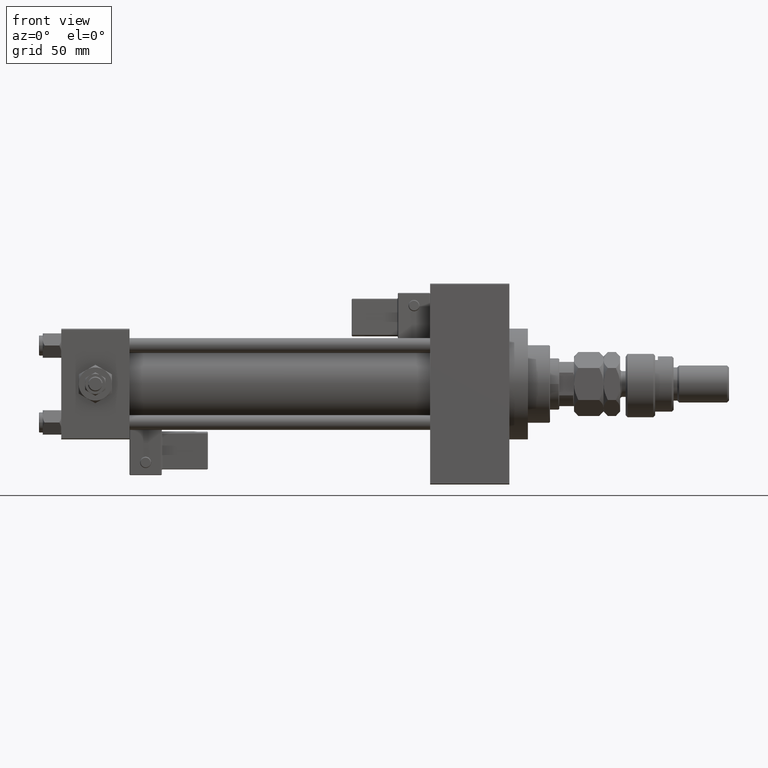
[diagram: clean part render]
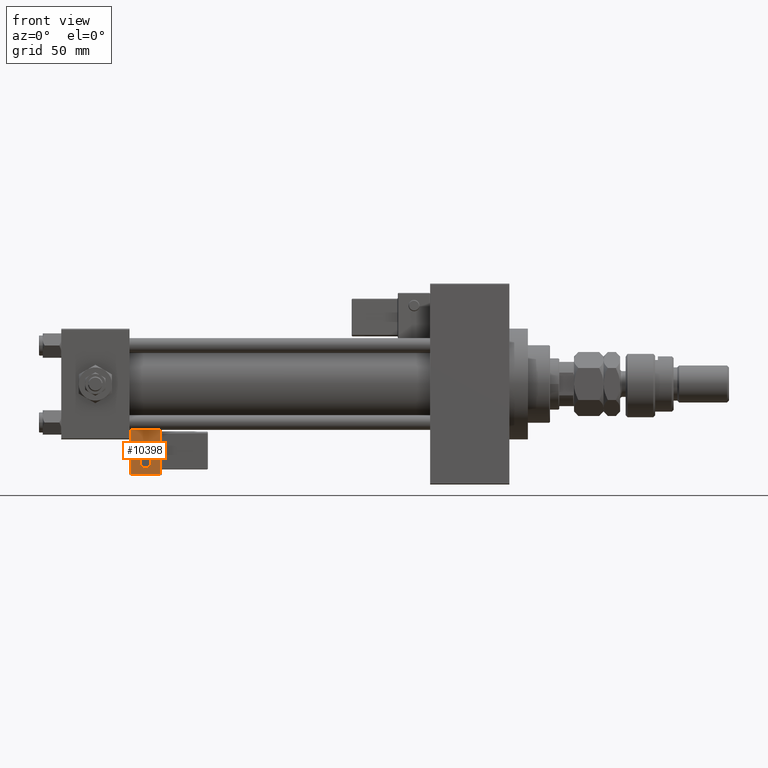
[diagram: same view with one face highlighted and labeled with its STEP entity id]
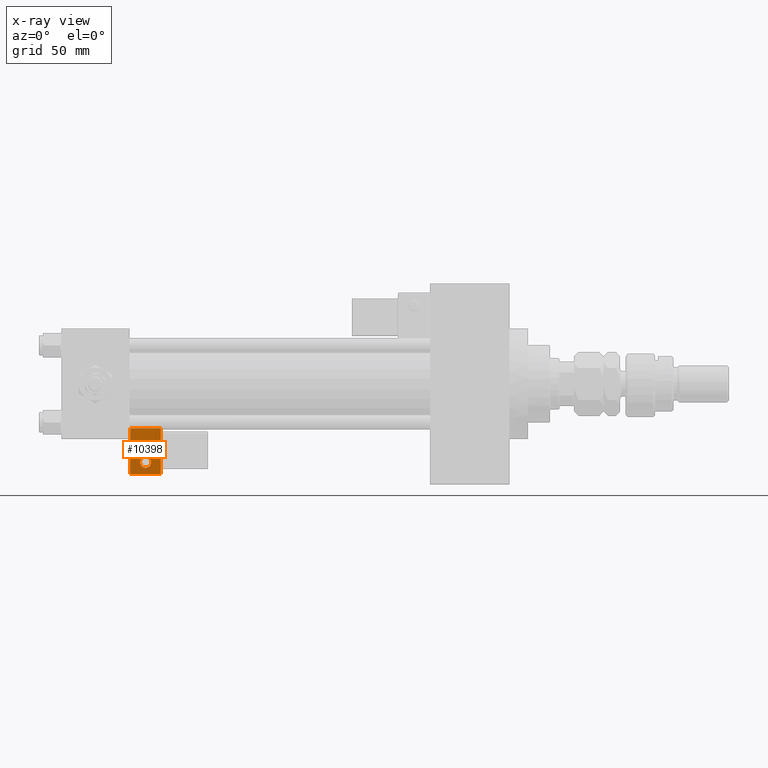
[diagram: x-ray of the same camera — body ghosted, the highlighted face saturated]
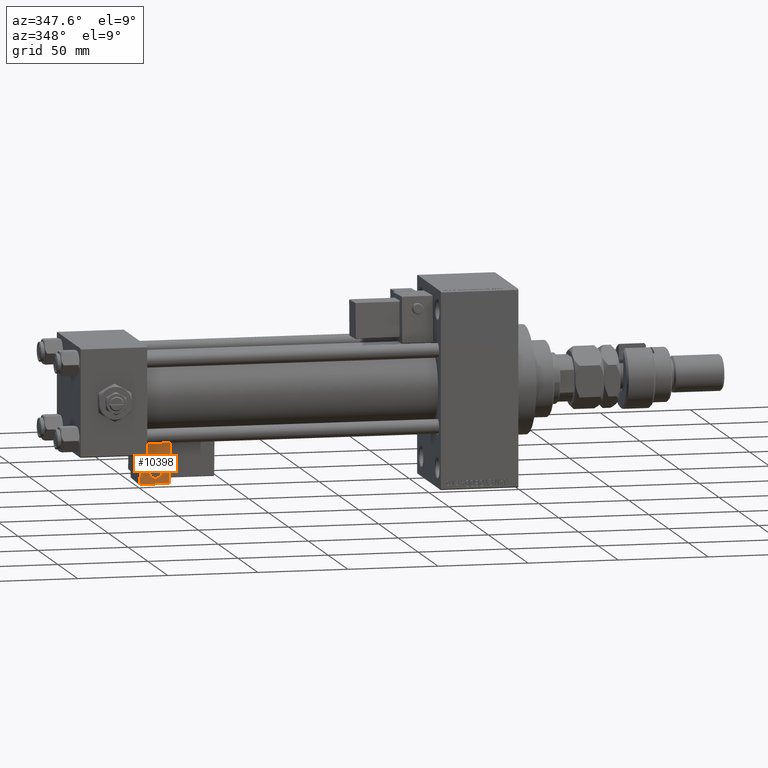
[diagram: same view with one face highlighted and labeled with its STEP entity id]
A machine part, front view. The second image highlights one B-rep face of the part: STEP entity #10398.
The next image is the same camera in x-ray: the body ghosted, the highlighted face saturated — about 0% of this face is hidden behind the body in this view.
A second angle (auxiliary view) of the same face is appended — the face is thin or edge-on in the first view.
In plain terms, the highlighted planar face has unit normal (0, 0.9994, 0.0353).
Its self-contained STEP definition (entity closure, byte-faithful):
#170 = CARTESIAN_POINT ( 'NONE',  ( -8.250000000000003553, -35.75000000000000000, 1.100882205908358788E-15 ) ) ;
#2681 = EDGE_CURVE ( 'NONE', #23006, #23966, #26011, .T. ) ;
#5224 = CARTESIAN_POINT ( 'NONE',  ( 8.250000000000003553, -35.75000000000000000, 1.100882205908358986E-15 ) ) ;
#5817 = CARTESIAN_POINT ( 'NONE',  ( -6.628682924999581145E-17, -35.75000000000000000, 3.000000000000001776 ) ) ;
#6632 = CARTESIAN_POINT ( 'NONE',  ( -8.250000000000003553, -35.75000000000000000, -0.5000000000000002220 ) ) ;
#8767 = AXIS2_PLACEMENT_3D ( 'NONE', #39858, #11418, #15237 ) ;
#10398 = ADVANCED_FACE ( 'NONE', ( #31394, #44508 ), #23199, .F. ) ;
#10868 = CARTESIAN_POINT ( 'NONE',  ( 0.000000000000000000, -35.75000000000000000, -0.5000000000000002220 ) ) ;
#11418 = DIRECTION ( 'NONE',  ( 0.000000000000000000, 1.000000000000000000, 0.000000000000000000 ) ) ;
#11716 = CARTESIAN_POINT ( 'NONE',  ( 4.857225732735059864E-15, -35.75000000000000000, 24.50000000000000000 ) ) ;
#12217 = DIRECTION ( 'NONE',  ( -1.334402673828313093E-16, 0.000000000000000000, -1.000000000000000000 ) ) ;
#12886 = AXIS2_PLACEMENT_3D ( 'NONE', #46091, #24541, #25342 ) ;
#13291 = CARTESIAN_POINT ( 'NONE',  ( 8.250000000000003553, -35.75000000000000000, -0.5000000000000002220 ) ) ;
#14730 = VERTEX_POINT ( 'NONE', #5817 ) ;
#15041 = VERTEX_POINT ( 'NONE', #48115 ) ;
#15237 = DIRECTION ( 'NONE',  ( 0.000000000000000000, -0.000000000000000000, 1.000000000000000000 ) ) ;
#16498 = CIRCLE ( 'NONE', #27002, 2.999999999999999112 ) ;
#16616 = ORIENTED_EDGE ( 'NONE', *, *, #49527, .F. ) ;
#17627 = EDGE_CURVE ( 'NONE', #34666, #23006, #48587, .T. ) ;
#18472 = ORIENTED_EDGE ( 'NONE', *, *, #22029, .F. ) ;
#19007 = CARTESIAN_POINT ( 'NONE',  ( -8.250000000000000000, -35.75000000000000000, 24.50000000000000355 ) ) ;
#20220 = LINE ( 'NONE', #11716, #34716 ) ;
#22029 = EDGE_CURVE ( 'NONE', #15041, #14730, #32085, .T. ) ;
#23006 = VERTEX_POINT ( 'NONE', #13291 ) ;
#23199 = PLANE ( 'NONE',  #8767 ) ;
#23966 = VERTEX_POINT ( 'NONE', #42113 ) ;
#24541 = DIRECTION ( 'NONE',  ( -0.000000000000000000, -1.000000000000000000, -0.000000000000000000 ) ) ;
#25342 = DIRECTION ( 'NONE',  ( 0.000000000000000000, 0.000000000000000000, 1.000000000000000000 ) ) ;
#26011 = LINE ( 'NONE', #5224, #51126 ) ;
#27002 = AXIS2_PLACEMENT_3D ( 'NONE', #41425, #49605, #44708 ) ;
#28246 = EDGE_LOOP ( 'NONE', ( #31980, #47475, #49729, #41007 ) ) ;
#28395 = DIRECTION ( 'NONE',  ( -1.000000000000000000, 0.000000000000000000, 1.982541115402065110E-16 ) ) ;
#29282 = VECTOR ( 'NONE', #40398, 1000.000000000000000 ) ;
#30552 = VERTEX_POINT ( 'NONE', #19007 ) ;
#31394 = FACE_OUTER_BOUND ( 'NONE', #28246, .T. ) ;
#31980 = ORIENTED_EDGE ( 'NONE', *, *, #46584, .T. ) ;
#32085 = CIRCLE ( 'NONE', #12886, 2.999999999999999112 ) ;
#33062 = EDGE_CURVE ( 'NONE', #30552, #34666, #37630, .T. ) ;
#34666 = VERTEX_POINT ( 'NONE', #6632 ) ;
#34716 = VECTOR ( 'NONE', #28395, 1000.000000000000000 ) ;
#35490 = EDGE_LOOP ( 'NONE', ( #18472, #16616 ) ) ;
#35860 = VECTOR ( 'NONE', #12217, 1000.000000000000000 ) ;
#37630 = LINE ( 'NONE', #170, #35860 ) ;
#39858 = CARTESIAN_POINT ( 'NONE',  ( 0.000000000000000000, -35.75000000000000000, 0.000000000000000000 ) ) ;
#40398 = DIRECTION ( 'NONE',  ( 1.000000000000000000, 0.000000000000000000, 0.000000000000000000 ) ) ;
#41007 = ORIENTED_EDGE ( 'NONE', *, *, #2681, .T. ) ;
#41425 = CARTESIAN_POINT ( 'NONE',  ( -4.336808689942017736E-16, -35.75000000000000000, 6.000000000000001776 ) ) ;
#42113 = CARTESIAN_POINT ( 'NONE',  ( 8.250000000000000000, -35.75000000000000000, 24.50000000000000000 ) ) ;
#42952 = DIRECTION ( 'NONE',  ( -1.334402673828313339E-16, 0.000000000000000000, 1.000000000000000000 ) ) ;
#44508 = FACE_BOUND ( 'NONE', #35490, .T. ) ;
#44708 = DIRECTION ( 'NONE',  ( 0.000000000000000000, 0.000000000000000000, 1.000000000000000000 ) ) ;
#46091 = CARTESIAN_POINT ( 'NONE',  ( -4.336808689942017736E-16, -35.75000000000000000, 6.000000000000001776 ) ) ;
#46584 = EDGE_CURVE ( 'NONE', #23966, #30552, #20220, .T. ) ;
#47475 = ORIENTED_EDGE ( 'NONE', *, *, #33062, .T. ) ;
#48115 = CARTESIAN_POINT ( 'NONE',  ( -4.336808689942017736E-16, -35.75000000000000000, 9.000000000000001776 ) ) ;
#48587 = LINE ( 'NONE', #10868, #29282 ) ;
#49527 = EDGE_CURVE ( 'NONE', #14730, #15041, #16498, .T. ) ;
#49605 = DIRECTION ( 'NONE',  ( -0.000000000000000000, -1.000000000000000000, -0.000000000000000000 ) ) ;
#49729 = ORIENTED_EDGE ( 'NONE', *, *, #17627, .T. ) ;
#51126 = VECTOR ( 'NONE', #42952, 1000.000000000000000 ) ;